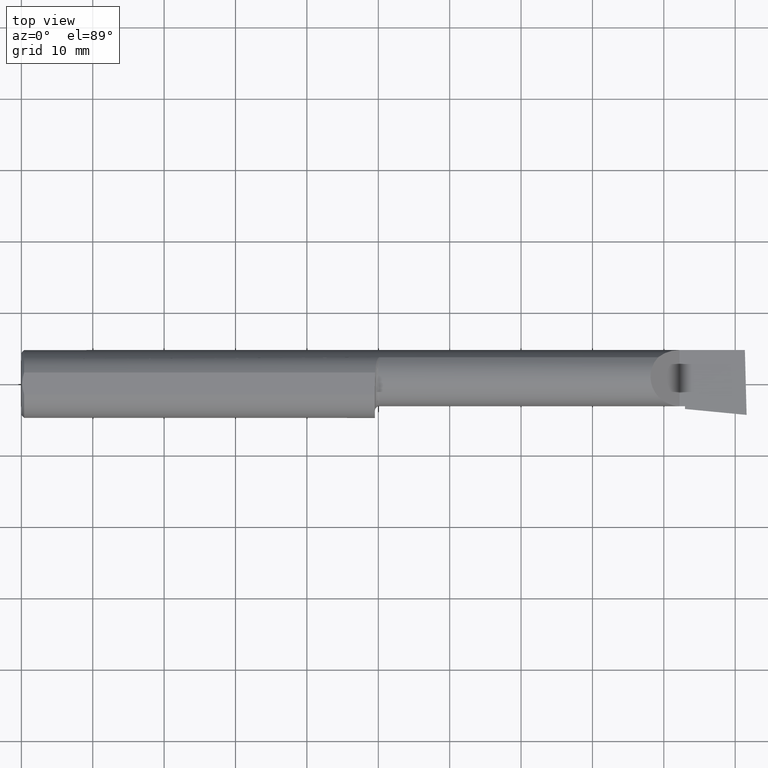
[diagram: clean part render]
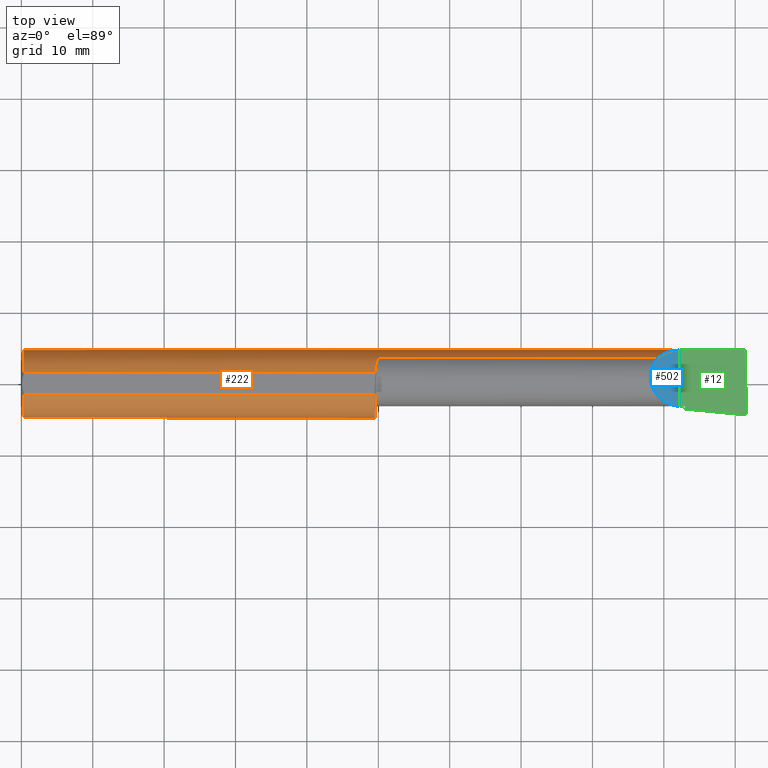
[diagram: same view with three faces highlighted in distinct colors, each labeled with its STEP entity id]
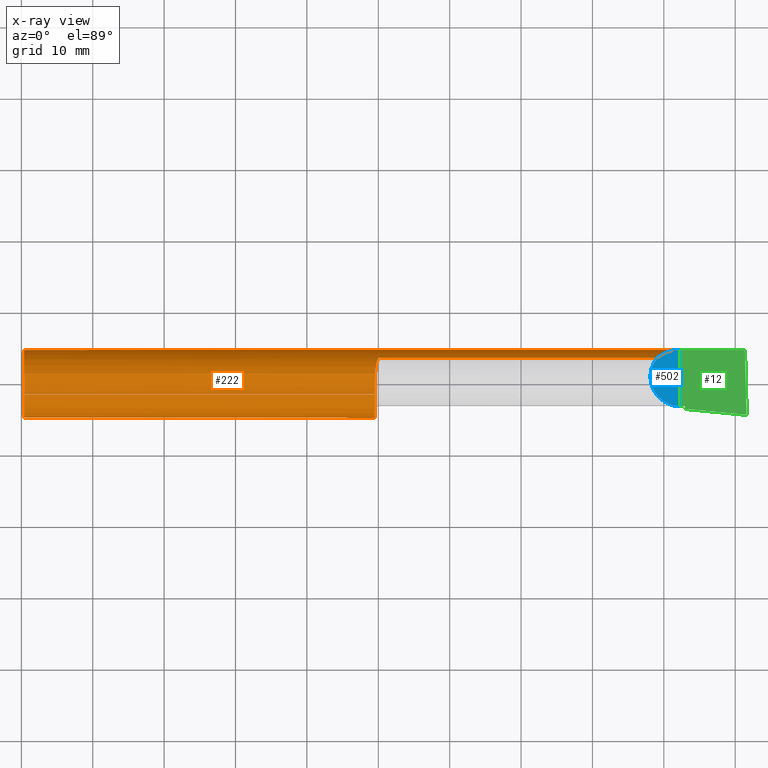
[diagram: x-ray of the same camera — body ghosted, the three highlighted faces saturated]
A machine part, top view with three faces highlighted in distinct colors.
The next image is the same camera in x-ray (body ghosted, the three faces saturated) — at least one of them is partly hidden behind the body in this view.
Their STEP definitions:

[orange] entity #222 — the highlighted cylindrical surface (edge-blend (fillet) strip) has radius 4.7587 mm, axis along (-1, -0, -0).
#13 = CARTESIAN_POINT ( 'NONE',  ( 0.01499999999999999424, 0.000000000000000000, 0.000000000000000000 ) ) ;
#14 = ORIENTED_EDGE ( 'NONE', *, *, #60, .T. ) ;
#25 = EDGE_CURVE ( 'NONE', #523, #217, #486, .T. ) ;
#30 = VERTEX_POINT ( 'NONE', #645 ) ;
#50 = DIRECTION ( 'NONE',  ( 0.000000000000000000, 0.000000000000000000, 1.000000000000000000 ) ) ;
#55 = EDGE_CURVE ( 'NONE', #361, #83, #98, .T. ) ;
#56 = CARTESIAN_POINT ( 'NONE',  ( 1.950785114220952909, 0.06039039658755706447, 0.1773499999999999799 ) ) ;
#59 = CIRCLE ( 'NONE', #504, 0.1873499999999999888 ) ;
#60 = EDGE_CURVE ( 'NONE', #361, #523, #266, .T. ) ;
#65 = DIRECTION ( 'NONE',  ( 0.000000000000000000, 0.000000000000000000, 1.000000000000000000 ) ) ;
#67 = VECTOR ( 'NONE', #264, 39.37007874015748143 ) ;
#70 = DIRECTION ( 'NONE',  ( 0.000000000000000000, 0.000000000000000000, 1.000000000000000000 ) ) ;
#78 = CARTESIAN_POINT ( 'NONE',  ( 8.128748646909141540E-32, 0.1873499999999999610, 5.059984255808939247E-16 ) ) ;
#79 = ORIENTED_EDGE ( 'NONE', *, *, #200, .T. ) ;
#83 = VERTEX_POINT ( 'NONE', #208 ) ;
#85 = CARTESIAN_POINT ( 'NONE',  ( 0.01499999999999999424, 0.06039039658753699719, 0.1773499999999999799 ) ) ;
#87 = CARTESIAN_POINT ( 'NONE',  ( 1.975000000000000089, 0.1454917112299455306, -0.1180346748349065666 ) ) ;
#90 = ORIENTED_EDGE ( 'NONE', *, *, #25, .T. ) ;
#96 = EDGE_CURVE ( 'NONE', #614, #30, #333, .T. ) ;
#98 = CIRCLE ( 'NONE', #511, 0.1873499999999999888 ) ;
#103 = CARTESIAN_POINT ( 'NONE',  ( 3.977555437944266803, 0.1454917112299461412, -0.1180346748349058866 ) ) ;
#104 = CARTESIAN_POINT ( 'NONE',  ( 1.957856989254823210, 0.1163906274731418417, 0.1470923697301113608 ) ) ;
#109 = VERTEX_POINT ( 'NONE', #505 ) ;
#114 = VECTOR ( 'NONE', #305, 39.37007874015748143 ) ;
#118 = CARTESIAN_POINT ( 'NONE',  ( 3.545676520271627385, 0.1728409665178091137, 0.08432347972837070382 ) ) ;
#119 = CARTESIAN_POINT ( 'NONE',  ( 0.000000000000000000, 0.000000000000000000, 0.000000000000000000 ) ) ;
#122 = VECTOR ( 'NONE', #158, 39.37007874015748143 ) ;
#123 = CARTESIAN_POINT ( 'NONE',  ( 1.950000000000000178, 0.03015080213903642212, -0.1849079544810678932 ) ) ;
#145 = CARTESIAN_POINT ( 'NONE',  ( 1.961427394884099895, 0.1284293148232723558, -0.1365241029388019611 ) ) ;
#148 = CARTESIAN_POINT ( 'NONE',  ( 1.950336700870086482, 0.05340758954924363505, -0.1799583179751515771 ) ) ;
#151 = VECTOR ( 'NONE', #389, 39.37007874015748143 ) ;
#152 = CARTESIAN_POINT ( 'NONE',  ( 1.951254447665113245, 0.06913273524514566837, 0.1743730995284143437 ) ) ;
#157 = CARTESIAN_POINT ( 'NONE',  ( 1.972747571447394765, 0.1451248899809843285, 0.1184877922625929836 ) ) ;
#158 = DIRECTION ( 'NONE',  ( 1.000000000000000000, -4.268512490100411279E-18, 0.000000000000000000 ) ) ;
#162 = LINE ( 'NONE', #607, #151 ) ;
#178 = CYLINDRICAL_SURFACE ( 'NONE', #314, 0.1873499999999999888 ) ;
#179 = ORIENTED_EDGE ( 'NONE', *, *, #182, .F. ) ;
#182 = EDGE_CURVE ( 'NONE', #83, #398, #472, .T. ) ;
#184 = ORIENTED_EDGE ( 'NONE', *, *, #248, .T. ) ;
#189 = CARTESIAN_POINT ( 'NONE',  ( 1.965943198097122480, 0.1383011673991917656, -0.1264147259943165791 ) ) ;
#198 = CARTESIAN_POINT ( 'NONE',  ( 3.977555437944266803, 0.1454917112299461412, -0.1180346748349058866 ) ) ;
#200 = EDGE_CURVE ( 'NONE', #282, #233, #59, .T. ) ;
#203 = DIRECTION ( 'NONE',  ( -1.000000000000000000, -0.000000000000000000, -0.000000000000000000 ) ) ;
#208 = CARTESIAN_POINT ( 'NONE',  ( 0.01499999999999999424, 0.000000000000000000, -0.1873499999999999888 ) ) ;
#211 = CARTESIAN_POINT ( 'NONE',  ( 1.953756193690770138, 0.09375315173897452725, 0.1624602995582725973 ) ) ;
#212 = LINE ( 'NONE', #650, #122 ) ;
#215 = DIRECTION ( 'NONE',  ( -1.000000000000000000, 4.268512490100411279E-18, -0.000000000000000000 ) ) ;
#216 = AXIS2_PLACEMENT_3D ( 'NONE', #13, #268, #65 ) ;
#217 = VERTEX_POINT ( 'NONE', #400 ) ;
#222 = ADVANCED_FACE ( 'NONE', ( #512 ), #178, .T. ) ;
#233 = VERTEX_POINT ( 'NONE', #674 ) ;
#238 = EDGE_CURVE ( 'NONE', #233, #398, #162, .T. ) ;
#243 = CARTESIAN_POINT ( 'NONE',  ( 1.972144995725005234, 0.1448851833857920934, -0.1187833539262112548 ) ) ;
#246 = ORIENTED_EDGE ( 'NONE', *, *, #592, .T. ) ;
#248 = EDGE_CURVE ( 'NONE', #298, #30, #691, .T. ) ;
#251 = CARTESIAN_POINT ( 'NONE',  ( 1.952713316750944950, 0.08594842947873448935, -0.1668827936309223714 ) ) ;
#254 = CARTESIAN_POINT ( 'NONE',  ( 1.950000000000000178, 0.03015080213903642212, -0.1849079544810678932 ) ) ;
#260 = EDGE_CURVE ( 'NONE', #614, #109, #683, .T. ) ;
#262 = CARTESIAN_POINT ( 'NONE',  ( 1.970979411886278232, 0.1441668297984126657, 0.1196516435036799331 ) ) ;
#264 = DIRECTION ( 'NONE',  ( 1.000000000000000000, 0.000000000000000000, 0.000000000000000000 ) ) ;
#266 = LINE ( 'NONE', #431, #67 ) ;
#268 = DIRECTION ( 'NONE',  ( -1.000000000000000000, -0.000000000000000000, -0.000000000000000000 ) ) ;
#280 = DIRECTION ( 'NONE',  ( 0.000000000000000000, -1.000000000000000000, 0.000000000000000000 ) ) ;
#282 = VERTEX_POINT ( 'NONE', #123 ) ;
#289 = CARTESIAN_POINT ( 'NONE',  ( 3.511965325165093965, 0.1454917112299477233, 0.1180346748349040964 ) ) ;
#298 = VERTEX_POINT ( 'NONE', #476 ) ;
#303 = CARTESIAN_POINT ( 'NONE',  ( 1.970088327122038185, 0.1434986192849181941, -0.1204547541528198235 ) ) ;
#305 = DIRECTION ( 'NONE',  ( -1.000000000000000000, 4.268512490100411279E-18, -0.000000000000000000 ) ) ;
#307 = CARTESIAN_POINT ( 'NONE',  ( 1.973475335450380674, 0.1454917112299454474, -0.1180346748349067609 ) ) ;
#314 = AXIS2_PLACEMENT_3D ( 'NONE', #119, #342, #70 ) ;
#315 = CARTESIAN_POINT ( 'NONE',  ( 1.968301303217147025, 0.1417275102151517863, 0.1225437935165513414 ) ) ;
#333 =( BOUNDED_CURVE ( )  B_SPLINE_CURVE ( 3, ( #103, #666, #616, #336 ),
 .UNSPECIFIED., .F., .T. ) 
 B_SPLINE_CURVE_WITH_KNOTS ( ( 4, 4 ),
 ( 0.6667001948156751068, 1.348282100702876463 ),
 .UNSPECIFIED. ) 
 CURVE ( )  GEOMETRIC_REPRESENTATION_ITEM ( )  RATIONAL_B_SPLINE_CURVE ( ( 1.000000000000000000, 0.9616603987079545002, 0.9616603987079545002, 1.000000000000000000 ) ) 
 REPRESENTATION_ITEM ( '' )  );
#336 = CARTESIAN_POINT ( 'NONE',  ( 3.990409415965618933, 0.1873499999999998777, -1.350776936262635077E-16 ) ) ;
#337 = ORIENTED_EDGE ( 'NONE', *, *, #55, .F. ) ;
#342 = DIRECTION ( 'NONE',  ( -1.000000000000000000, -0.000000000000000000, -0.000000000000000000 ) ) ;
#361 = VERTEX_POINT ( 'NONE', #85 ) ;
#364 = CARTESIAN_POINT ( 'NONE',  ( 2.817500000000000338, 0.1454917112299461412, -0.1180346748349058866 ) ) ;
#366 = CARTESIAN_POINT ( 'NONE',  ( 1.950000000000000178, 0.04186526254461610946, -0.1829978128711763907 ) ) ;
#378 = VERTEX_POINT ( 'NONE', #410 ) ;
#389 = DIRECTION ( 'NONE',  ( -1.000000000000000000, -0.000000000000000000, -0.000000000000000000 ) ) ;
#394 = ORIENTED_EDGE ( 'NONE', *, *, #646, .T. ) ;
#398 = VERTEX_POINT ( 'NONE', #451 ) ;
#400 = CARTESIAN_POINT ( 'NONE',  ( 1.975000000000000089, 0.1454917112299453641, 0.1180346748349067193 ) ) ;
#402 = B_SPLINE_CURVE_WITH_KNOTS ( 'NONE', 3,
 ( #87, #307, #243, #303, #478, #685, #189, #474, #145, #417, #632, #251, #637, #148, #366, #254 ),
 .UNSPECIFIED., .F., .F.,
 ( 4, 2, 2, 2, 2, 2, 2, 4 ),
 ( 1.966851289225526099E-07, 0.0001144729266691654448, 0.0002287491682094083313, 0.0004573016512898837502, 0.0009144066174508344797, 0.001828616549772736806, 0.002742826482094638807, 0.003657036414416541242 ),
 .UNSPECIFIED. ) ;
#406 = EDGE_LOOP ( 'NONE', ( #680, #676, #246, #79, #595, #179, #337, #14, #90, #394, #537, #184 ) ) ;
#410 = CARTESIAN_POINT ( 'NONE',  ( 3.511965325165093965, 0.1454917112299477233, 0.1180346748349040964 ) ) ;
#417 = CARTESIAN_POINT ( 'NONE',  ( 1.957485333659844340, 0.1155414972264635493, -0.1479248906558535137 ) ) ;
#431 = CARTESIAN_POINT ( 'NONE',  ( 0.000000000000000000, 0.06039039658753699719, 0.1773499999999999799 ) ) ;
#434 = CARTESIAN_POINT ( 'NONE',  ( 0.01499999999999999424, 0.000000000000000000, 0.000000000000000000 ) ) ;
#451 = CARTESIAN_POINT ( 'NONE',  ( 0.01499999999999997863, -0.06039039658753695555, 0.1773499999999999799 ) ) ;
#461 = CARTESIAN_POINT ( 'NONE',  ( 1.950000000000000178, 0.000000000000000000, 0.000000000000000000 ) ) ;
#470 = EDGE_CURVE ( 'NONE', #378, #298, #672, .T. ) ;
#472 = CIRCLE ( 'NONE', #216, 0.1873499999999999888 ) ;
#474 = CARTESIAN_POINT ( 'NONE',  ( 1.962916881138097702, 0.1325294370633266217, -0.1325423110575161822 ) ) ;
#476 = CARTESIAN_POINT ( 'NONE',  ( 3.629999999999999893, 0.1873499999999998222, -7.715274834628322913E-17 ) ) ;
#478 = CARTESIAN_POINT ( 'NONE',  ( 1.969258671360877067, 0.1426776373316526458, -0.1214281201482031169 ) ) ;
#486 = B_SPLINE_CURVE_WITH_KNOTS ( 'NONE', 3,
 ( #541, #152, #594, #211, #652, #104, #550, #658, #598, #488, #315, #703, #262, #157, #542, #603 ),
 .UNSPECIFIED., .F., .F.,
 ( 4, 2, 2, 2, 2, 2, 2, 4 ),
 ( 6.151301699810280611E-07, 0.0006981691358976889385, 0.001395723141625396712, 0.002093277147353104703, 0.002442054150216959024, 0.002616442651648882498, 0.002703636902364849222, 0.002790831153080816380 ),
 .UNSPECIFIED. ) ;
#488 = CARTESIAN_POINT ( 'NONE',  ( 1.967292422785009487, 0.1403457439362448267, 0.1241275356246053091 ) ) ;
#504 = AXIS2_PLACEMENT_3D ( 'NONE', #461, #215, #280 ) ;
#505 = CARTESIAN_POINT ( 'NONE',  ( 1.975000000000000089, 0.1454917112299455306, -0.1180346748349065666 ) ) ;
#511 = AXIS2_PLACEMENT_3D ( 'NONE', #434, #203, #50 ) ;
#512 = FACE_OUTER_BOUND ( 'NONE', #406, .T. ) ;
#520 = CARTESIAN_POINT ( 'NONE',  ( 3.586590019116434824, 0.1873500000000000443, 0.04340998088356351481 ) ) ;
#523 = VERTEX_POINT ( 'NONE', #56 ) ;
#537 = ORIENTED_EDGE ( 'NONE', *, *, #470, .T. ) ;
#541 = CARTESIAN_POINT ( 'NONE',  ( 1.950785114220952909, 0.06039039658755706447, 0.1773499999999999799 ) ) ;
#542 = CARTESIAN_POINT ( 'NONE',  ( 1.973823267261954006, 0.1454917112314809136, 0.1180346748330144274 ) ) ;
#550 = CARTESIAN_POINT ( 'NONE',  ( 1.959599265606707386, 0.1233235773942316510, 0.1413171637583588991 ) ) ;
#556 = VECTOR ( 'NONE', #570, 39.37007874015748143 ) ;
#570 = DIRECTION ( 'NONE',  ( 1.000000000000000000, 0.000000000000000000, 0.000000000000000000 ) ) ;
#592 = EDGE_CURVE ( 'NONE', #109, #282, #402, .T. ) ;
#594 = CARTESIAN_POINT ( 'NONE',  ( 1.951930490988349476, 0.07754988809226505408, 0.1707893944319495427 ) ) ;
#595 = ORIENTED_EDGE ( 'NONE', *, *, #238, .T. ) ;
#598 = CARTESIAN_POINT ( 'NONE',  ( 1.964583283836183636, 0.1360517497522352459, 0.1288725946599111605 ) ) ;
#603 = CARTESIAN_POINT ( 'NONE',  ( 1.975000000000000089, 0.1454917112299453641, 0.1180346748349067193 ) ) ;
#607 = CARTESIAN_POINT ( 'NONE',  ( 0.000000000000000000, -0.06039039658753694861, 0.1773499999999999799 ) ) ;
#614 = VERTEX_POINT ( 'NONE', #198 ) ;
#616 = CARTESIAN_POINT ( 'NONE',  ( 3.985269663752128100, 0.1873499999999999888, -0.04340998088356462503 ) ) ;
#632 = CARTESIAN_POINT ( 'NONE',  ( 1.955627379275792332, 0.1060494212093216065, -0.1548887329701224558 ) ) ;
#637 = CARTESIAN_POINT ( 'NONE',  ( 1.951697995486590953, 0.07541755249016818263, -0.1718998534214004614 ) ) ;
#645 = CARTESIAN_POINT ( 'NONE',  ( 3.990409415965618933, 0.1873499999999998777, -1.350776936262635077E-16 ) ) ;
#646 = EDGE_CURVE ( 'NONE', #217, #378, #212, .T. ) ;
#650 = CARTESIAN_POINT ( 'NONE',  ( 2.817500000000000338, 0.1454917112299461412, 0.1180346748349058866 ) ) ;
#652 = CARTESIAN_POINT ( 'NONE',  ( 1.954907919874499411, 0.1015769351683013799, 0.1576866184500959889 ) ) ;
#658 = CARTESIAN_POINT ( 'NONE',  ( 1.963218714262525033, 0.1329549799200344384, 0.1320711988586751040 ) ) ;
#666 = CARTESIAN_POINT ( 'NONE',  ( 3.980814183058311695, 0.1728409665178085308, -0.08432347972837234140 ) ) ;
#668 = CARTESIAN_POINT ( 'NONE',  ( 3.629999999999999893, 0.1873499999999998222, -7.715274834628322913E-17 ) ) ;
#672 =( BOUNDED_CURVE ( )  B_SPLINE_CURVE ( 3, ( #289, #118, #520, #668 ),
 .UNSPECIFIED., .F., .F. ) 
 B_SPLINE_CURVE_WITH_KNOTS ( ( 4, 4 ),
 ( 0.8892144209077075256, 1.570796326794898334 ),
 .UNSPECIFIED. ) 
 CURVE ( )  GEOMETRIC_REPRESENTATION_ITEM ( )  RATIONAL_B_SPLINE_CURVE ( ( 1.000000000000000000, 0.9616603987079557214, 0.9616603987079557214, 1.000000000000000000 ) ) 
 REPRESENTATION_ITEM ( '' )  );
#674 = CARTESIAN_POINT ( 'NONE',  ( 1.950000000000000178, -0.06039039658753697637, 0.1773499999999999799 ) ) ;
#676 = ORIENTED_EDGE ( 'NONE', *, *, #260, .T. ) ;
#680 = ORIENTED_EDGE ( 'NONE', *, *, #96, .F. ) ;
#683 = LINE ( 'NONE', #364, #114 ) ;
#685 = CARTESIAN_POINT ( 'NONE',  ( 1.967060058352116059, 0.1401415676386923159, -0.1243666343873870289 ) ) ;
#691 = LINE ( 'NONE', #78, #556 ) ;
#703 = CARTESIAN_POINT ( 'NONE',  ( 1.970249534181367279, 0.1435786592825512020, 0.1203582261165738465 ) ) ;

[blue] entity #502 — the highlighted planar face has unit normal (-0.7071, 0, -0.7071).
#5 = VECTOR ( 'NONE', #236, 39.37007874015748143 ) ;
#26 = LINE ( 'NONE', #424, #5 ) ;
#68 = CARTESIAN_POINT ( 'NONE',  ( 3.629999999999999893, -0.1226500000000001755, -7.715274834628322913E-17 ) ) ;
#115 = DIRECTION ( 'NONE',  ( -0.7071067811865437980, 0.000000000000000000, -0.7071067811865513475 ) ) ;
#118 = CARTESIAN_POINT ( 'NONE',  ( 3.545676520271627385, 0.1728409665178091137, 0.08432347972837070382 ) ) ;
#177 = DIRECTION ( 'NONE',  ( -0.7071067811865512365, 0.000000000000000000, 0.7071067811865436870 ) ) ;
#236 = DIRECTION ( 'NONE',  ( -0.000000000000000000, 1.000000000000000000, -0.000000000000000000 ) ) ;
#271 =( BOUNDED_CURVE ( )  B_SPLINE_CURVE ( 3, ( #600, #655, #386, #324 ),
 .UNSPECIFIED., .F., .T. ) 
 B_SPLINE_CURVE_WITH_KNOTS ( ( 4, 4 ),
 ( 5.541729662751375685, 7.853981633974485455 ),
 .UNSPECIFIED. ) 
 CURVE ( )  GEOMETRIC_REPRESENTATION_ITEM ( )  RATIONAL_B_SPLINE_CURVE ( ( 1.000000000000000000, 0.6019254882129680961, 0.6019254882129680961, 1.000000000000000000 ) ) 
 REPRESENTATION_ITEM ( '' )  );
#288 = ORIENTED_EDGE ( 'NONE', *, *, #293, .T. ) ;
#289 = CARTESIAN_POINT ( 'NONE',  ( 3.511965325165093965, 0.1454917112299477233, 0.1180346748349040964 ) ) ;
#293 = EDGE_CURVE ( 'NONE', #458, #298, #26, .T. ) ;
#298 = VERTEX_POINT ( 'NONE', #476 ) ;
#324 = CARTESIAN_POINT ( 'NONE',  ( 3.629999999999999893, -0.1226500000000001755, -7.715274834628322913E-17 ) ) ;
#367 = ORIENTED_EDGE ( 'NONE', *, *, #647, .T. ) ;
#378 = VERTEX_POINT ( 'NONE', #410 ) ;
#386 = CARTESIAN_POINT ( 'NONE',  ( 3.467758842172326439, -0.1226500000000005086, 0.1622411578276714561 ) ) ;
#409 = FACE_OUTER_BOUND ( 'NONE', #643, .T. ) ;
#410 = CARTESIAN_POINT ( 'NONE',  ( 3.511965325165093965, 0.1454917112299477233, 0.1180346748349040964 ) ) ;
#424 = CARTESIAN_POINT ( 'NONE',  ( 3.629999999999999893, -0.2500000000000000555, -7.715274834628322913E-17 ) ) ;
#458 = VERTEX_POINT ( 'NONE', #68 ) ;
#470 = EDGE_CURVE ( 'NONE', #378, #298, #672, .T. ) ;
#476 = CARTESIAN_POINT ( 'NONE',  ( 3.629999999999999893, 0.1873499999999998222, -7.715274834628322913E-17 ) ) ;
#502 = ADVANCED_FACE ( 'NONE', ( #409 ), #625, .F. ) ;
#513 = AXIS2_PLACEMENT_3D ( 'NONE', #673, #115, #177 ) ;
#514 = ORIENTED_EDGE ( 'NONE', *, *, #470, .F. ) ;
#520 = CARTESIAN_POINT ( 'NONE',  ( 3.586590019116434824, 0.1873500000000000443, 0.04340998088356351481 ) ) ;
#600 = CARTESIAN_POINT ( 'NONE',  ( 3.511965325165093965, 0.1454917112299477233, 0.1180346748349040964 ) ) ;
#625 = PLANE ( 'NONE',  #513 ) ;
#643 = EDGE_LOOP ( 'NONE', ( #514, #367, #288 ) ) ;
#647 = EDGE_CURVE ( 'NONE', #378, #458, #271, .T. ) ;
#655 = CARTESIAN_POINT ( 'NONE',  ( 3.402393788885672343, 0.02584108761840385807, 0.2276062111143238587 ) ) ;
#668 = CARTESIAN_POINT ( 'NONE',  ( 3.629999999999999893, 0.1873499999999998222, -7.715274834628322913E-17 ) ) ;
#672 =( BOUNDED_CURVE ( )  B_SPLINE_CURVE ( 3, ( #289, #118, #520, #668 ),
 .UNSPECIFIED., .F., .F. ) 
 B_SPLINE_CURVE_WITH_KNOTS ( ( 4, 4 ),
 ( 0.8892144209077075256, 1.570796326794898334 ),
 .UNSPECIFIED. ) 
 CURVE ( )  GEOMETRIC_REPRESENTATION_ITEM ( )  RATIONAL_B_SPLINE_CURVE ( ( 1.000000000000000000, 0.9616603987079557214, 0.9616603987079557214, 1.000000000000000000 ) ) 
 REPRESENTATION_ITEM ( '' )  );
#673 = CARTESIAN_POINT ( 'NONE',  ( 3.629999999999999893, -0.2500000000000000555, -7.715274834628322913E-17 ) ) ;

[green] entity #12 — the highlighted planar face has unit normal (-0, 0, -1).
#5 = VECTOR ( 'NONE', #236, 39.37007874015748143 ) ;
#12 = ADVANCED_FACE ( 'NONE', ( #546 ), #490, .F. ) ;
#15 = CARTESIAN_POINT ( 'NONE',  ( 4.002124209719674752, -0.2499430938217229448, -1.369336491024132282E-16 ) ) ;
#20 = DIRECTION ( 'NONE',  ( 0.02677973311239319198, -0.9996413586354002678, -4.242669001540338239E-18 ) ) ;
#22 = CARTESIAN_POINT ( 'NONE',  ( 4.007570346891563773, -0.1713789414967140379, -1.378085585473596570E-16 ) ) ;
#26 = LINE ( 'NONE', #424, #5 ) ;
#30 = VERTEX_POINT ( 'NONE', #645 ) ;
#37 = VERTEX_POINT ( 'NONE', #45 ) ;
#45 = CARTESIAN_POINT ( 'NONE',  ( 4.000000000000000888, -0.1706500000000002737, 0.000000000000000000 ) ) ;
#47 = CARTESIAN_POINT ( 'NONE',  ( 4.000000000000000000, -0.2500000000000000555, -1.365923996832131609E-16 ) ) ;
#66 = ORIENTED_EDGE ( 'NONE', *, *, #199, .T. ) ;
#68 = CARTESIAN_POINT ( 'NONE',  ( 3.629999999999999893, -0.1226500000000001755, -7.715274834628322913E-17 ) ) ;
#76 = ORIENTED_EDGE ( 'NONE', *, *, #487, .T. ) ;
#78 = CARTESIAN_POINT ( 'NONE',  ( 8.128748646909141540E-32, 0.1873499999999999610, 5.059984255808939247E-16 ) ) ;
#99 = ORIENTED_EDGE ( 'NONE', *, *, #248, .F. ) ;
#102 = VECTOR ( 'NONE', #707, 39.37007874015748143 ) ;
#121 = CARTESIAN_POINT ( 'NONE',  ( 3.659999999999999698, -0.1226499999999999813, 0.000000000000000000 ) ) ;
#165 = CARTESIAN_POINT ( 'NONE',  ( 3.659999999999999698, -0.2500000000000000555, -8.197217953576400343E-17 ) ) ;
#175 = CARTESIAN_POINT ( 'NONE',  ( 3.659999999999999698, -0.1379117236128369062, 0.000000000000000000 ) ) ;
#180 = LINE ( 'NONE', #165, #482 ) ;
#199 = EDGE_CURVE ( 'NONE', #201, #37, #613, .T. ) ;
#201 = VERTEX_POINT ( 'NONE', #175 ) ;
#236 = DIRECTION ( 'NONE',  ( -0.000000000000000000, 1.000000000000000000, -0.000000000000000000 ) ) ;
#248 = EDGE_CURVE ( 'NONE', #298, #30, #691, .T. ) ;
#263 = LINE ( 'NONE', #379, #102 ) ;
#293 = EDGE_CURVE ( 'NONE', #458, #298, #26, .T. ) ;
#298 = VERTEX_POINT ( 'NONE', #476 ) ;
#329 = DIRECTION ( 'NONE',  ( 0.9953961983671787417, -0.09584575252022418945, -1.585755372546859719E-16 ) ) ;
#379 = CARTESIAN_POINT ( 'NONE',  ( -6.831754240404898105E-19, -0.1226500000000000368, 5.059984255808939247E-16 ) ) ;
#424 = CARTESIAN_POINT ( 'NONE',  ( 3.629999999999999893, -0.2500000000000000555, -7.715274834628322913E-17 ) ) ;
#429 = ORIENTED_EDGE ( 'NONE', *, *, #448, .F. ) ;
#448 = EDGE_CURVE ( 'NONE', #30, #37, #507, .T. ) ;
#458 = VERTEX_POINT ( 'NONE', #68 ) ;
#476 = CARTESIAN_POINT ( 'NONE',  ( 3.629999999999999893, 0.1873499999999998222, -7.715274834628322913E-17 ) ) ;
#482 = VECTOR ( 'NONE', #612, 39.37007874015748143 ) ;
#487 = EDGE_CURVE ( 'NONE', #506, #201, #180, .T. ) ;
#490 = PLANE ( 'NONE',  #545 ) ;
#506 = VERTEX_POINT ( 'NONE', #121 ) ;
#507 = LINE ( 'NONE', #15, #539 ) ;
#531 = VECTOR ( 'NONE', #329, 39.37007874015748854 ) ;
#535 = EDGE_LOOP ( 'NONE', ( #429, #99, #611, #640, #76, #66 ) ) ;
#539 = VECTOR ( 'NONE', #20, 39.37007874015748143 ) ;
#545 = AXIS2_PLACEMENT_3D ( 'NONE', #47, #654, #590 ) ;
#546 = FACE_OUTER_BOUND ( 'NONE', #535, .T. ) ;
#556 = VECTOR ( 'NONE', #570, 39.37007874015748143 ) ;
#570 = DIRECTION ( 'NONE',  ( 1.000000000000000000, 0.000000000000000000, 0.000000000000000000 ) ) ;
#590 = DIRECTION ( 'NONE',  ( -1.000000000000000000, 0.000000000000000000, 1.606477063160268207E-16 ) ) ;
#611 = ORIENTED_EDGE ( 'NONE', *, *, #293, .F. ) ;
#612 = DIRECTION ( 'NONE',  ( -4.268512490100411279E-18, -1.000000000000000000, 6.857267409159432199E-34 ) ) ;
#613 = LINE ( 'NONE', #22, #531 ) ;
#640 = ORIENTED_EDGE ( 'NONE', *, *, #702, .T. ) ;
#645 = CARTESIAN_POINT ( 'NONE',  ( 3.990409415965618933, 0.1873499999999998777, -1.350776936262635077E-16 ) ) ;
#654 = DIRECTION ( 'NONE',  ( -1.606477063160268207E-16, 0.000000000000000000, -1.000000000000000000 ) ) ;
#691 = LINE ( 'NONE', #78, #556 ) ;
#702 = EDGE_CURVE ( 'NONE', #458, #506, #263, .T. ) ;
#707 = DIRECTION ( 'NONE',  ( 1.000000000000000000, -4.268512490100411279E-18, 0.000000000000000000 ) ) ;